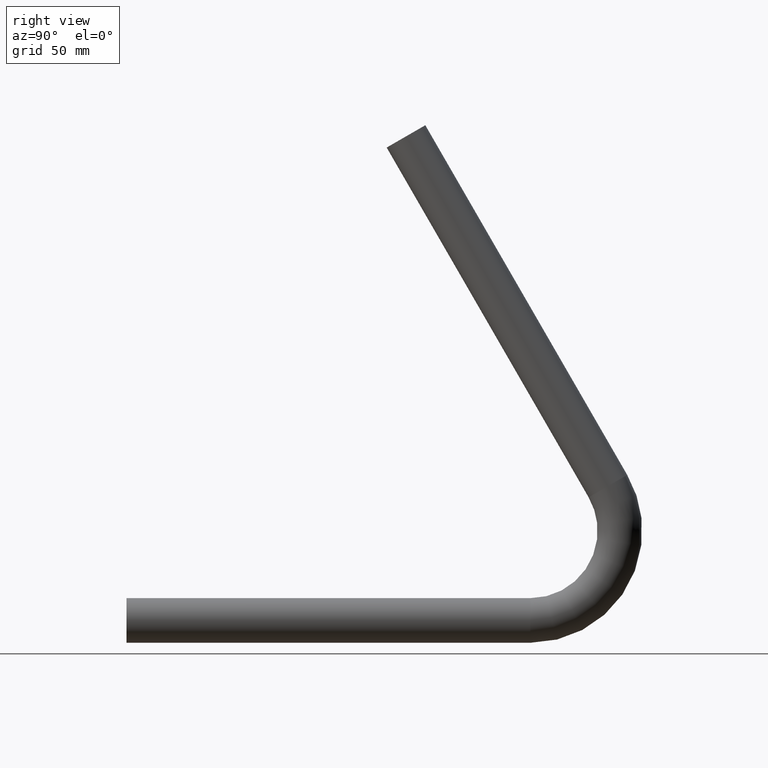
[diagram: clean part render]
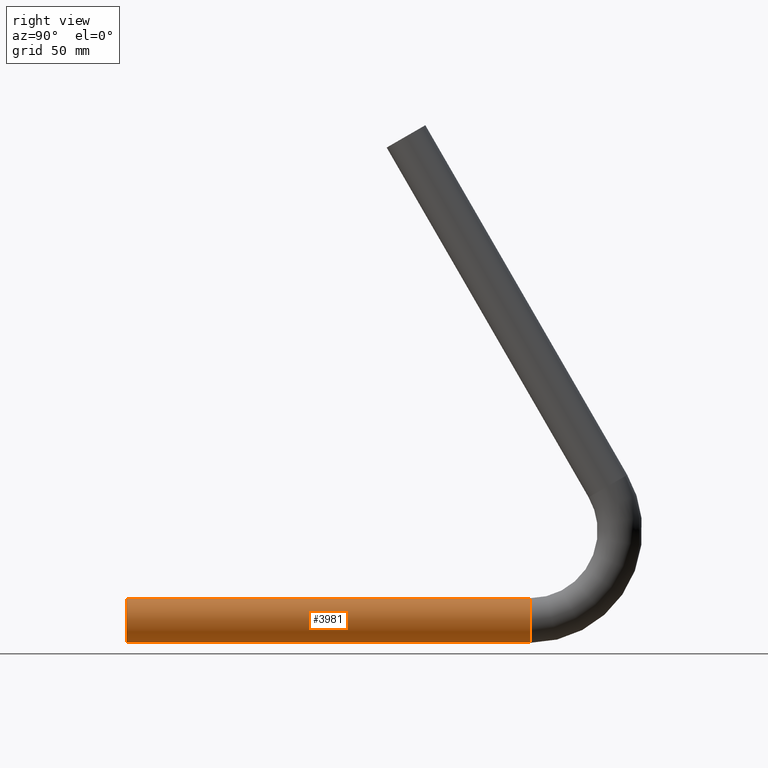
[diagram: same view with one face highlighted and labeled with its STEP entity id]
A machine part, right view. The second image highlights one B-rep face of the part: STEP entity #3981.
In plain terms, the highlighted cylindrical surface (bore or boss wall) has radius 13.45 mm, axis along (-0, -1, 0).
Its self-contained STEP definition (entity closure, byte-faithful):
#52 = ORIENTED_EDGE ( 'NONE', *, *, #9679, .F. ) ;
#128 = DIRECTION ( 'NONE',  ( 0.000000000000000000, 0.000000000000000000, 1.000000000000000000 ) ) ;
#377 = CIRCLE ( 'NONE', #6961, 13.45000000000000107 ) ;
#605 = DIRECTION ( 'NONE',  ( 0.000000000000000000, 0.000000000000000000, 1.000000000000000000 ) ) ;
#784 = CARTESIAN_POINT ( 'NONE',  ( 0.000000000000000000, 0.000000000000000000, 0.000000000000000000 ) ) ;
#951 = EDGE_LOOP ( 'NONE', ( #52 ) ) ;
#1528 = CARTESIAN_POINT ( 'NONE',  ( 0.000000000000000000, 0.000000000000000000, 13.45000000000000107 ) ) ;
#2476 = ORIENTED_EDGE ( 'NONE', *, *, #2715, .T. ) ;
#2681 = DIRECTION ( 'NONE',  ( -0.000000000000000000, -1.000000000000000000, 3.066110741720407753E-31 ) ) ;
#2715 = EDGE_CURVE ( 'NONE', #10373, #10373, #11868, .T. ) ;
#2938 = AXIS2_PLACEMENT_3D ( 'NONE', #784, #5269, #605 ) ;
#3681 = CYLINDRICAL_SURFACE ( 'NONE', #7984, 13.45000000000000107 ) ;
#3981 = ADVANCED_FACE ( 'NONE', ( #4840, #9775 ), #3681, .T. ) ;
#4840 = FACE_OUTER_BOUND ( 'NONE', #951, .T. ) ;
#5269 = DIRECTION ( 'NONE',  ( 0.000000000000000000, 1.000000000000000000, 0.000000000000000000 ) ) ;
#5473 = DIRECTION ( 'NONE',  ( 0.000000000000000000, 0.000000000000000000, -1.000000000000000000 ) ) ;
#6961 = AXIS2_PLACEMENT_3D ( 'NONE', #7511, #9312, #128 ) ;
#7432 = VERTEX_POINT ( 'NONE', #11860 ) ;
#7511 = CARTESIAN_POINT ( 'NONE',  ( 0.000000000000000000, 243.4513322353836031, -7.464487448530533640E-29 ) ) ;
#7984 = AXIS2_PLACEMENT_3D ( 'NONE', #11863, #2681, #5473 ) ;
#8242 = EDGE_LOOP ( 'NONE', ( #2476 ) ) ;
#9312 = DIRECTION ( 'NONE',  ( 0.000000000000000000, 1.000000000000000000, 0.000000000000000000 ) ) ;
#9679 = EDGE_CURVE ( 'NONE', #7432, #7432, #377, .T. ) ;
#9775 = FACE_OUTER_BOUND ( 'NONE', #8242, .T. ) ;
#10373 = VERTEX_POINT ( 'NONE', #1528 ) ;
#11860 = CARTESIAN_POINT ( 'NONE',  ( 0.000000000000000000, 243.4513322353836031, 13.45000000000000107 ) ) ;
#11863 = CARTESIAN_POINT ( 'NONE',  ( 0.000000000000000000, 243.4513322353836031, -7.464487448530533640E-29 ) ) ;
#11868 = CIRCLE ( 'NONE', #2938, 13.45000000000000107 ) ;